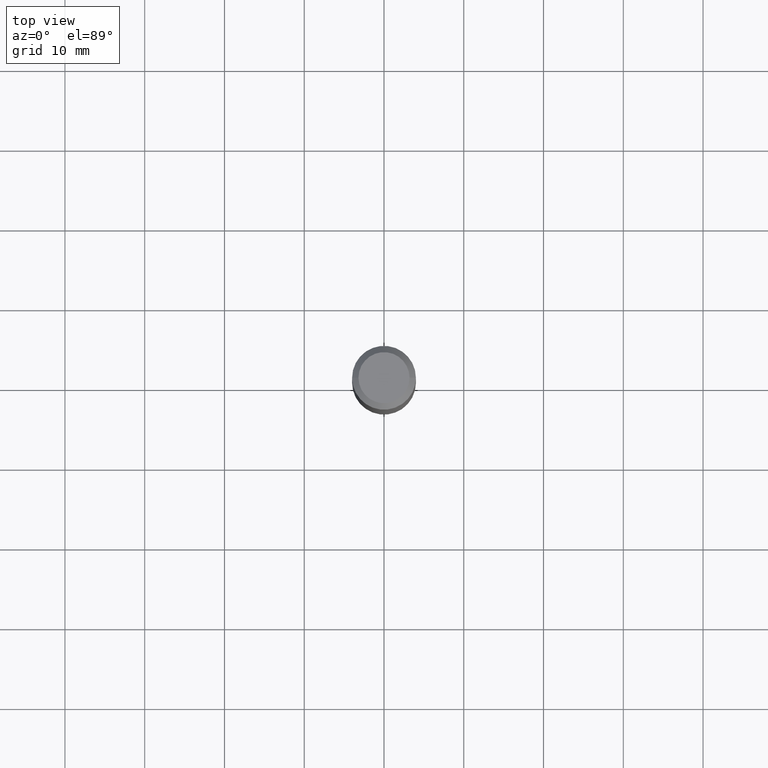
[diagram: clean part render]
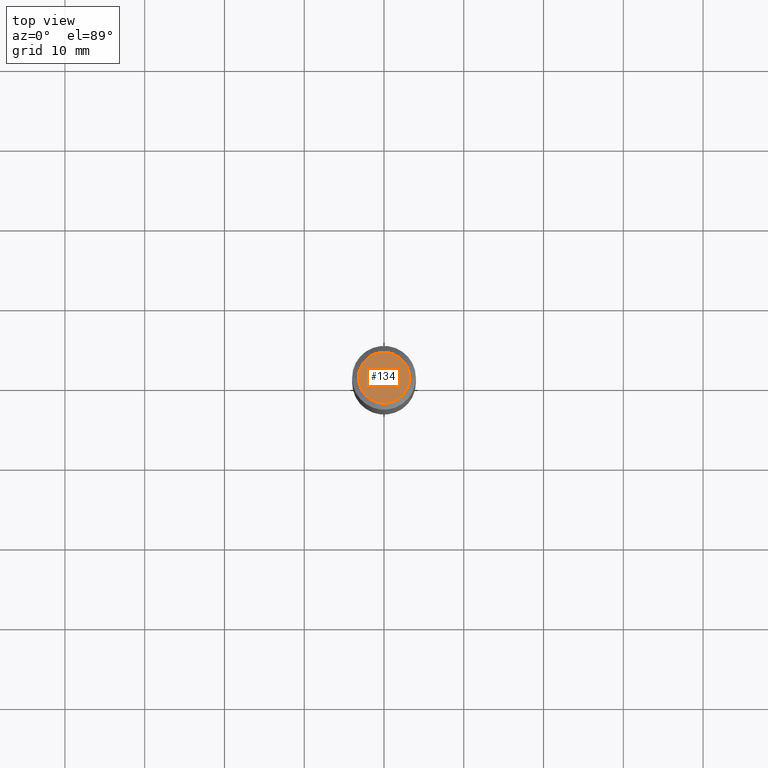
[diagram: same view with one face highlighted and labeled with its STEP entity id]
A machine part, top view. The second image highlights one B-rep face of the part: STEP entity #134.
In plain terms, the highlighted planar face has unit normal (0, -0, -1).
Its self-contained STEP definition (entity closure, byte-faithful):
#2 = VERTEX_POINT ( 'NONE', #164 ) ;
#55 = ORIENTED_EDGE ( 'NONE', *, *, #488, .T. ) ;
#68 = EDGE_CURVE ( 'NONE', #227, #2, #198, .T. ) ;
#123 = DIRECTION ( 'NONE',  ( -1.000000000000000000, 6.982962677686265922E-15, -4.876176775795935793E-29 ) ) ;
#134 = ADVANCED_FACE ( 'NONE', ( #478 ), #219, .F. ) ;
#143 = DIRECTION ( 'NONE',  ( -2.445468806185136597E-29, 3.491481338843145583E-15, 1.000000000000000000 ) ) ;
#152 = AXIS2_PLACEMENT_3D ( 'NONE', #248, #209, #363 ) ;
#164 = CARTESIAN_POINT ( 'NONE',  ( -0.1260000000000000009, 9.348441284752484904E-16, 3.860086710906114178E-18 ) ) ;
#181 = CARTESIAN_POINT ( 'NONE',  ( -4.719860820353100843E-47, 6.738710358733633822E-33, 1.930043355456229866E-18 ) ) ;
#198 = CIRCLE ( 'NONE', #152, 0.1260000000000000009 ) ;
#209 = DIRECTION ( 'NONE',  ( -2.445468806185136597E-29, 3.491481338843145583E-15, 1.000000000000000000 ) ) ;
#219 = PLANE ( 'NONE',  #268 ) ;
#227 = VERTEX_POINT ( 'NONE', #332 ) ;
#248 = CARTESIAN_POINT ( 'NONE',  ( -9.439721640706201686E-47, 1.347742071746726764E-32, 3.860086710912459732E-18 ) ) ;
#267 = EDGE_LOOP ( 'NONE', ( #55, #272 ) ) ;
#268 = AXIS2_PLACEMENT_3D ( 'NONE', #181, #465, #123 ) ;
#272 = ORIENTED_EDGE ( 'NONE', *, *, #68, .T. ) ;
#301 = DIRECTION ( 'NONE',  ( 1.000000000000000000, -6.982962677686265922E-15, 4.876281427513067258E-29 ) ) ;
#332 = CARTESIAN_POINT ( 'NONE',  ( 0.1260000000000000009, -1.027466422270894443E-15, 3.860086710919128072E-18 ) ) ;
#335 = CARTESIAN_POINT ( 'NONE',  ( -9.439721640706201686E-47, 1.347742071746726764E-32, 3.860086710912459732E-18 ) ) ;
#363 = DIRECTION ( 'NONE',  ( 1.000000000000000000, -6.982962677686265922E-15, 4.876281427513067258E-29 ) ) ;
#395 = CIRCLE ( 'NONE', #402, 0.1260000000000000009 ) ;
#402 = AXIS2_PLACEMENT_3D ( 'NONE', #335, #143, #301 ) ;
#465 = DIRECTION ( 'NONE',  ( 2.438088387897960049E-29, -3.491481338843145188E-15, -1.000000000000000000 ) ) ;
#478 = FACE_OUTER_BOUND ( 'NONE', #267, .T. ) ;
#488 = EDGE_CURVE ( 'NONE', #2, #227, #395, .T. ) ;